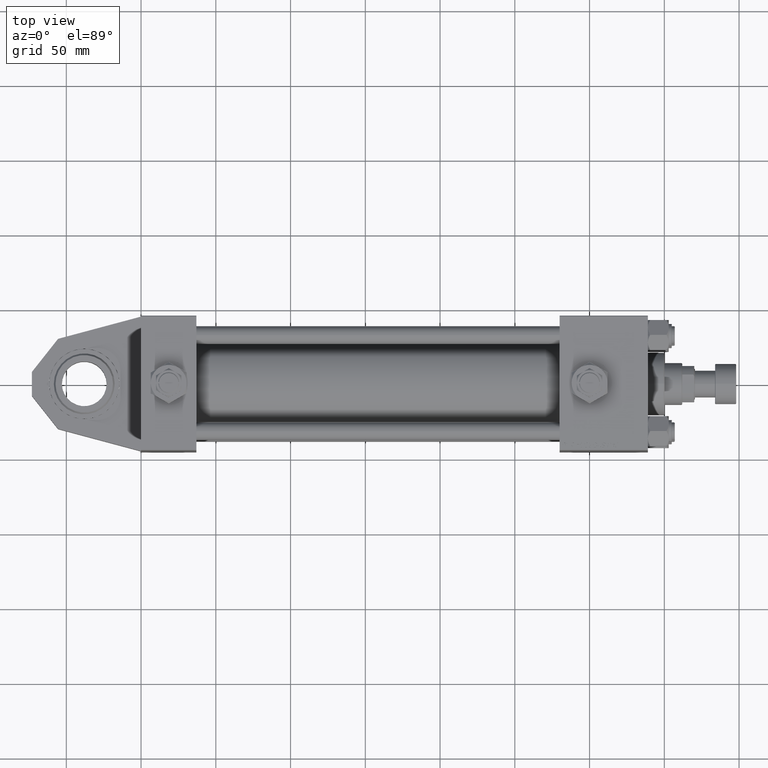
[diagram: clean part render]
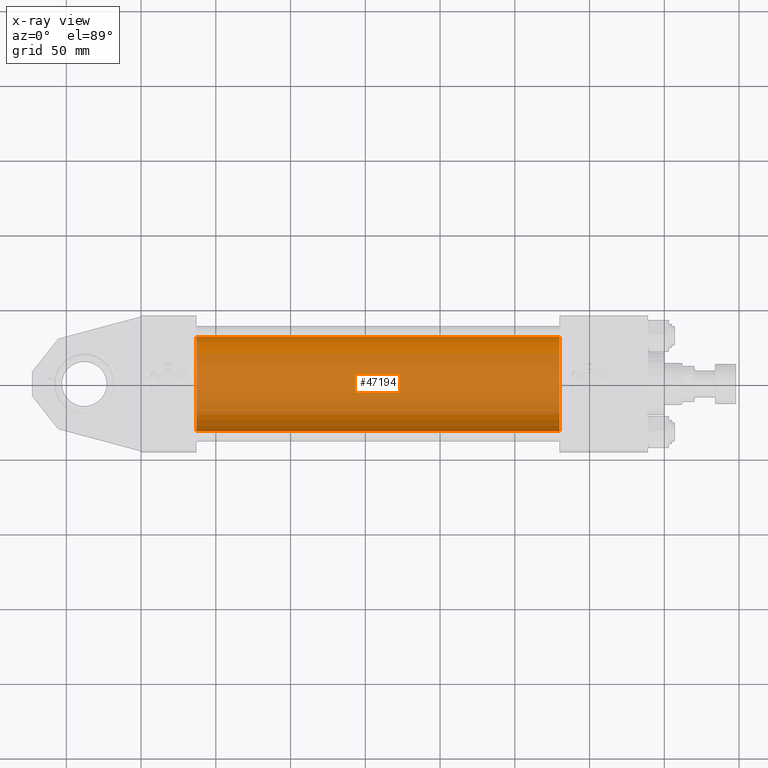
[diagram: x-ray — body ghosted, one internal face saturated and labeled with its STEP entity id]
A machine part, top view, then the same camera in x-ray: the body is ghosted and one INTERNAL B-rep face — a face not visible from any outside direction — is saturated and labeled: STEP entity #47194.
In plain terms, the highlighted cylindrical surface (partial cylindrical patch) has radius 31.5 mm, axis along (-1, 0, -0).
Its self-contained STEP definition (entity closure, byte-faithful):
#10 = VECTOR ( 'NONE', #2260, 1000.000000000000000 ) ;
#2260 = DIRECTION ( 'NONE',  ( -1.000000000000000000, -0.000000000000000000, -0.000000000000000000 ) ) ;
#3378 = CARTESIAN_POINT ( 'NONE',  ( 37.00000000000000000, 1.255552203348951850E-15, -31.50000000000000000 ) ) ;
#4370 = DIRECTION ( 'NONE',  ( -1.000000000000000000, -0.000000000000000000, -0.000000000000000000 ) ) ;
#4912 = DIRECTION ( 'NONE',  ( 1.000000000000000000, 0.000000000000000000, 0.000000000000000000 ) ) ;
#7434 = DIRECTION ( 'NONE',  ( -1.000000000000000000, -0.000000000000000000, -0.000000000000000000 ) ) ;
#8046 = EDGE_LOOP ( 'NONE', ( #20185, #14260, #46262, #44875 ) ) ;
#8991 = VERTEX_POINT ( 'NONE', #3378 ) ;
#9935 = VERTEX_POINT ( 'NONE', #37497 ) ;
#14260 = ORIENTED_EDGE ( 'NONE', *, *, #36308, .T. ) ;
#15426 = FACE_OUTER_BOUND ( 'NONE', #8046, .T. ) ;
#15496 = CIRCLE ( 'NONE', #48727, 31.50000000000000000 ) ;
#15526 = EDGE_CURVE ( 'NONE', #31725, #18351, #15496, .T. ) ;
#16952 = EDGE_CURVE ( 'NONE', #9935, #8991, #31620, .T. ) ;
#17403 = AXIS2_PLACEMENT_3D ( 'NONE', #48222, #7434, #19449 ) ;
#18351 = VERTEX_POINT ( 'NONE', #41450 ) ;
#19449 = DIRECTION ( 'NONE',  ( 0.000000000000000000, 0.000000000000000000, 1.000000000000000000 ) ) ;
#20185 = ORIENTED_EDGE ( 'NONE', *, *, #15526, .T. ) ;
#21971 = LINE ( 'NONE', #39055, #10 ) ;
#22821 = EDGE_CURVE ( 'NONE', #31725, #9935, #40378, .T. ) ;
#23350 = DIRECTION ( 'NONE',  ( 1.000000000000000000, 0.000000000000000000, 0.000000000000000000 ) ) ;
#25665 = AXIS2_PLACEMENT_3D ( 'NONE', #28122, #23350, #39627 ) ;
#28122 = CARTESIAN_POINT ( 'NONE',  ( 37.00000000000000000, -2.602085213965210642E-15, 0.000000000000000000 ) ) ;
#28447 = VECTOR ( 'NONE', #4370, 1000.000000000000000 ) ;
#31244 = CARTESIAN_POINT ( 'NONE',  ( 279.9999999999999432, -2.602085213965210642E-15, 31.50000000000000000 ) ) ;
#31620 = CIRCLE ( 'NONE', #25665, 31.50000000000000000 ) ;
#31725 = VERTEX_POINT ( 'NONE', #31244 ) ;
#32116 = CARTESIAN_POINT ( 'NONE',  ( 279.9999999999999432, -2.602085213965210642E-15, 31.50000000000000000 ) ) ;
#36308 = EDGE_CURVE ( 'NONE', #18351, #8991, #21971, .T. ) ;
#37497 = CARTESIAN_POINT ( 'NONE',  ( 37.00000000000000000, -2.602085213965210642E-15, 31.50000000000000000 ) ) ;
#37718 = CARTESIAN_POINT ( 'NONE',  ( 279.9999999999999432, -2.602085213965210642E-15, 0.000000000000000000 ) ) ;
#39055 = CARTESIAN_POINT ( 'NONE',  ( 279.9999999999999432, 1.255552203348951850E-15, -31.50000000000000000 ) ) ;
#39627 = DIRECTION ( 'NONE',  ( 0.000000000000000000, 0.000000000000000000, -1.000000000000000000 ) ) ;
#40249 = CYLINDRICAL_SURFACE ( 'NONE', #17403, 31.50000000000000000 ) ;
#40378 = LINE ( 'NONE', #32116, #28447 ) ;
#41450 = CARTESIAN_POINT ( 'NONE',  ( 279.9999999999999432, 1.255552203348951850E-15, -31.50000000000000000 ) ) ;
#41955 = DIRECTION ( 'NONE',  ( 0.000000000000000000, 0.000000000000000000, -1.000000000000000000 ) ) ;
#44875 = ORIENTED_EDGE ( 'NONE', *, *, #22821, .F. ) ;
#46262 = ORIENTED_EDGE ( 'NONE', *, *, #16952, .F. ) ;
#47194 = ADVANCED_FACE ( 'NONE', ( #15426 ), #40249, .F. ) ;
#48222 = CARTESIAN_POINT ( 'NONE',  ( 279.9999999999999432, -2.602085213965210642E-15, 0.000000000000000000 ) ) ;
#48727 = AXIS2_PLACEMENT_3D ( 'NONE', #37718, #4912, #41955 ) ;